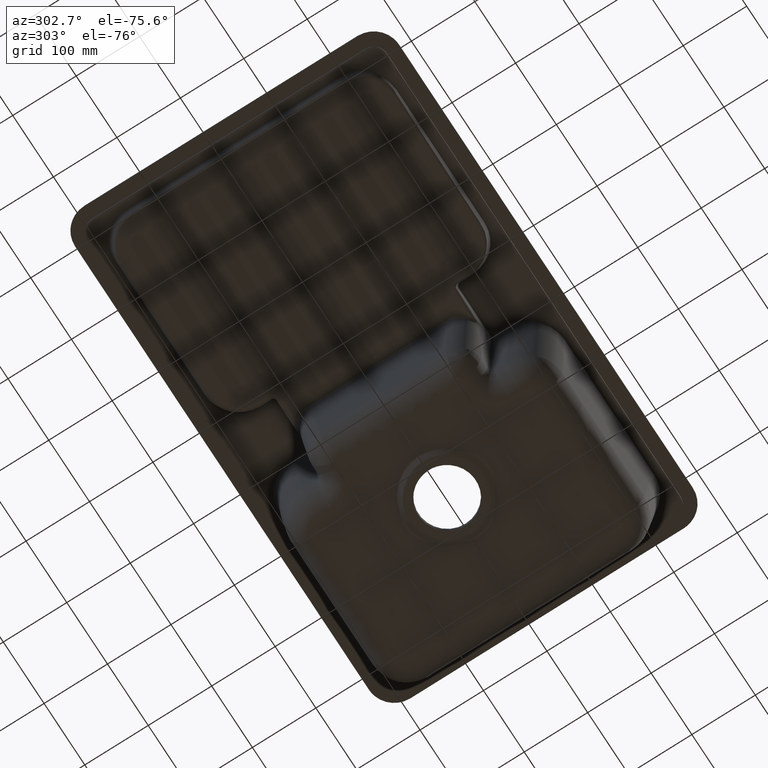
[diagram: clean part render]
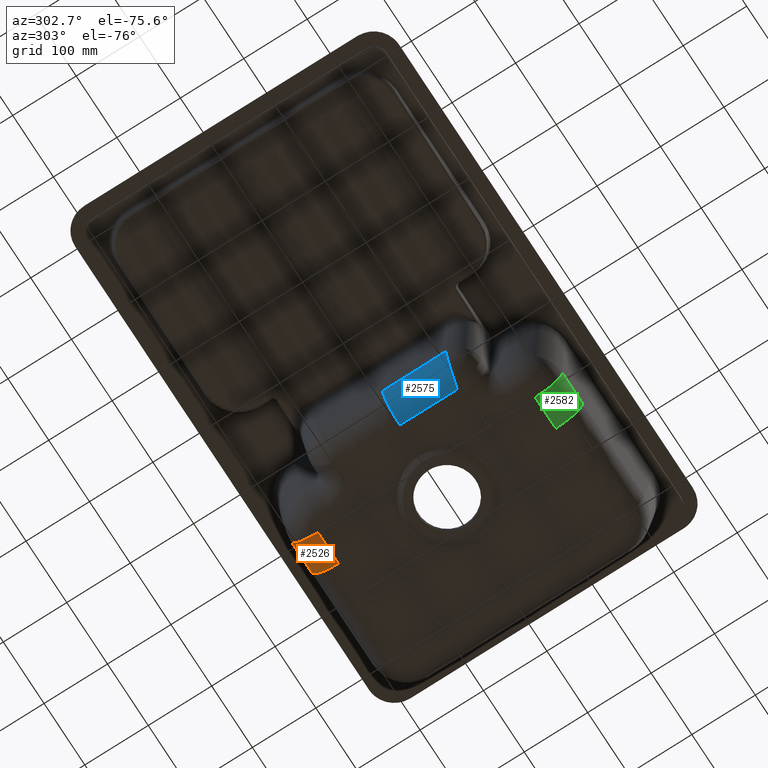
[diagram: same view with three faces highlighted in distinct colors, each labeled with its STEP entity id]
A machine part, auxiliary view with three faces highlighted in distinct colors.
Their STEP definitions:

[orange] entity #2526 — the highlighted face is a freeform B-spline surface patch.
#117=(
BOUNDED_CURVE()
B_SPLINE_CURVE(3,(#22427,#22428,#22429,#22430),.UNSPECIFIED.,.F.,.F.)
B_SPLINE_CURVE_WITH_KNOTS((4,4),(0.,1.),.UNSPECIFIED.)
CURVE()
GEOMETRIC_REPRESENTATION_ITEM()
RATIONAL_B_SPLINE_CURVE((0.999999995466364,0.999999995466364,0.999999995455953,
0.999999995455953))
REPRESENTATION_ITEM('')
);
#630=(
BOUNDED_SURFACE()
B_SPLINE_SURFACE(3,2,((#22826,#22827,#22828),(#22829,#22830,#22831),(#22832,
#22833,#22834),(#22835,#22836,#22837)),.UNSPECIFIED.,.F.,.F.,.F.)
B_SPLINE_SURFACE_WITH_KNOTS((4,4),(3,3),(0.,1.),(0.,1.),.UNSPECIFIED.)
GEOMETRIC_REPRESENTATION_ITEM()
RATIONAL_B_SPLINE_SURFACE(((1.,0.745772614702133,1.),(1.,0.745772614702133,
1.),(1.,0.745188849005256,1.),(1.,0.745188849005256,1.)))
REPRESENTATION_ITEM('')
SURFACE()
);
#1093=CIRCLE('',#11816,44.5);
#1094=CIRCLE('',#11817,44.5);
#1813=B_SPLINE_CURVE_WITH_KNOTS('',3,(#22084,#22085,#22086,#22087),
 .UNSPECIFIED.,.F.,.F.,(4,4),(0.,1.),.UNSPECIFIED.);
#2526=ADVANCED_FACE('',(#3359),#630,.T.);
#3359=FACE_OUTER_BOUND('',#4124,.T.);
#4124=EDGE_LOOP('',(#5935,#5936,#5937,#5938));
#5935=ORIENTED_EDGE('',*,*,#9891,.F.);
#5936=ORIENTED_EDGE('',*,*,#9811,.T.);
#5937=ORIENTED_EDGE('',*,*,#9892,.T.);
#5938=ORIENTED_EDGE('',*,*,#9860,.T.);
#8541=VERTEX_POINT('',#22083);
#8542=VERTEX_POINT('',#22088);
#8570=VERTEX_POINT('',#22375);
#8576=VERTEX_POINT('',#22426);
#9811=EDGE_CURVE('',#8542,#8541,#1813,.T.);
#9860=EDGE_CURVE('',#8570,#8576,#117,.T.);
#9891=EDGE_CURVE('',#8542,#8576,#1093,.T.);
#9892=EDGE_CURVE('',#8541,#8570,#1094,.T.);
#11816=AXIS2_PLACEMENT_3D('',#22776,#13248,#13249);
#11817=AXIS2_PLACEMENT_3D('',#22825,#13250,#13251);
#13248=DIRECTION('',(-0.999925989373044,0.000848669358611806,0.0121365372598005));
#13249=DIRECTION('',(0.0121365416304106,0.,0.999926349466426));
#13250=DIRECTION('',(-1.,0.,0.));
#13251=DIRECTION('',(0.,0.,1.));
#22083=CARTESIAN_POINT('',(154.999999999999,-786.214469888993,-146.562615644602));
#22084=CARTESIAN_POINT('',(105.061292286884,-786.192833572853,-146.253201908468));
#22085=CARTESIAN_POINT('',(121.706912440664,-786.206961246231,-146.455237050424));
#22086=CARTESIAN_POINT('',(138.353121941844,-786.214469888993,-146.562615644602));
#22087=CARTESIAN_POINT('',(154.999999999999,-786.214469888993,-146.562615644602));
#22088=CARTESIAN_POINT('',(105.061292286884,-786.192833572853,-146.253201908468));
#22375=CARTESIAN_POINT('',(154.999999999999,-828.703023088049,-187.917741940722));
#22426=CARTESIAN_POINT('',(104.523219798323,-828.75903905101,-187.608328204588));
#22427=CARTESIAN_POINT('',(154.999999999999,-828.703022559857,-187.917741918113));
#22428=CARTESIAN_POINT('',(138.165872843444,-828.703022562614,-187.917741918231));
#22429=CARTESIAN_POINT('',(121.333561883625,-828.724537933289,-187.810360322956));
#22430=CARTESIAN_POINT('',(104.523219799035,-828.759038522262,-187.608328182887));
#22776=CARTESIAN_POINT('',(105.061292286884,-830.584433809415,-143.149038826854));
#22825=CARTESIAN_POINT('',(154.999999999999,-830.606070125555,-143.458452562988));
#22826=CARTESIAN_POINT('',(154.999999999999,-828.703023088049,-187.917741940722));
#22827=CARTESIAN_POINT('',(154.999999999999,-788.98742667434,-186.217745176137));
#22828=CARTESIAN_POINT('',(154.999999999999,-786.214469888992,-146.562615644602));
#22829=CARTESIAN_POINT('',(138.165872843192,-828.703023090806,-187.91774194084));
#22830=CARTESIAN_POINT('',(138.184806905176,-788.987426673416,-186.217745177061));
#22831=CARTESIAN_POINT('',(138.35310427635,-786.214469888985,-146.562615644501));
#22832=CARTESIAN_POINT('',(121.333561883124,-828.72453846143,-187.810360345215));
#22833=CARTESIAN_POINT('',(121.371223110733,-788.981664911205,-186.13534813194));
#22834=CARTESIAN_POINT('',(121.706929962395,-786.206961261108,-146.455237263182));
#22835=CARTESIAN_POINT('',(104.523219798323,-828.75903905101,-187.608328204588));
#22836=CARTESIAN_POINT('',(104.576809784503,-788.970476835692,-185.975351190532));
#22837=CARTESIAN_POINT('',(105.061292286884,-786.192833572853,-146.253201908468));

[blue] entity #2575 — the highlighted face is a freeform B-spline surface patch.
#645=(
BOUNDED_SURFACE()
B_SPLINE_SURFACE(3,2,((#24105,#24106,#24107),(#24108,#24109,#24110),(#24111,
#24112,#24113),(#24114,#24115,#24116)),.UNSPECIFIED.,.F.,.F.,.F.)
B_SPLINE_SURFACE_WITH_KNOTS((4,4),(3,3),(0.,1.),(0.,1.),.UNSPECIFIED.)
GEOMETRIC_REPRESENTATION_ITEM()
RATIONAL_B_SPLINE_SURFACE(((1.,0.745772614702134,1.),(1.,0.745772614702134,
1.),(1.,0.742208724447458,1.),(1.,0.742208724447458,1.)))
REPRESENTATION_ITEM('')
SURFACE()
);
#1088=CIRCLE('',#11811,44.5);
#1881=B_SPLINE_CURVE_WITH_KNOTS('',3,(#23853,#23854,#23855,#23856,#23857,
#23858,#23859,#23860,#23861,#23862,#23863,#23864,#23865,#23866,#23867,#23868,
#23869,#23870),.UNSPECIFIED.,.F.,.F.,(4,2,2,2,2,2,2,2,4),(0.,0.249999999999984,
0.374999999999976,0.437499999999976,0.468749999999972,0.499999999999968,
0.624999999999974,0.74999999999998,1.),.UNSPECIFIED.);
#1895=B_SPLINE_CURVE_WITH_KNOTS('',3,(#24037,#24038,#24039,#24040,#24041,
#24042,#24043,#24044,#24045,#24046,#24047,#24048),.UNSPECIFIED.,.F.,.F.,
(4,2,2,2,2,4),(0.,0.230562478008955,0.480673452288861,0.73074479620605,
0.74993361334484,1.),.UNSPECIFIED.);
#1896=B_SPLINE_CURVE_WITH_KNOTS('',3,(#24050,#24051,#24052,#24053,#24054,
#24055,#24056,#24057,#24058,#24059,#24060,#24061,#24062,#24063,#24064,#24065,
#24066,#24067,#24068,#24069,#24070,#24071,#24072,#24073,#24074,#24075,#24076,
#24077,#24078,#24079,#24080,#24081,#24082,#24083,#24084,#24085,#24086,#24087,
#24088,#24089,#24090,#24091,#24092,#24093,#24094,#24095,#24096,#24097,#24098,
#24099,#24100,#24101,#24102,#24103,#24104),.UNSPECIFIED.,.F.,.F.,(4,2,2,
2,2,2,2,2,2,2,2,2,2,2,2,2,2,2,2,1,2,2,2,2,2,2,2,4),(0.,0.00195312499999872,
0.00390624999999745,0.0078124999999976,0.0156249999999977,0.0312499999999978,
0.046874999999998,0.0546874999999991,0.0625000000000002,0.09375,0.109375,
0.125,0.187500000000006,0.218750000000009,0.23437500000001,0.250000000000012,
0.375000000000018,0.437500000000021,0.468750000000021,0.484375000000022,
0.492187500000022,0.500000000000023,0.625000000000018,0.687500000000017,
0.718750000000016,0.734375000000015,0.750000000000015,1.),.UNSPECIFIED.);
#2575=ADVANCED_FACE('',(#3408),#645,.T.);
#3408=FACE_OUTER_BOUND('',#4173,.T.);
#4173=EDGE_LOOP('',(#6171,#6172,#6173,#6174));
#6171=ORIENTED_EDGE('',*,*,#9883,.T.);
#6172=ORIENTED_EDGE('',*,*,#9985,.F.);
#6173=ORIENTED_EDGE('',*,*,#10004,.T.);
#6174=ORIENTED_EDGE('',*,*,#10003,.F.);
#8571=VERTEX_POINT('',#22377);
#8592=VERTEX_POINT('',#22581);
#8642=VERTEX_POINT('',#23852);
#8652=VERTEX_POINT('',#24036);
#9883=EDGE_CURVE('',#8592,#8571,#1088,.T.);
#9985=EDGE_CURVE('',#8642,#8571,#1881,.T.);
#10003=EDGE_CURVE('',#8592,#8652,#1895,.T.);
#10004=EDGE_CURVE('',#8642,#8652,#1896,.T.);
#11811=AXIS2_PLACEMENT_3D('',#22584,#13238,#13239);
#13238=DIRECTION('',(8.02714802886122E-14,-1.,-3.43596141318321E-15));
#13239=DIRECTION('',(-1.,-7.98362624449551E-14,0.));
#22377=CARTESIAN_POINT('',(38.8681414185172,-1000.,-190.279044077616));
#22581=CARTESIAN_POINT('',(-3.62041178053926,-1000.,-148.923917781496));
#22584=CARTESIAN_POINT('',(40.7711884560229,-1000.,-145.819754699883));
#23852=CARTESIAN_POINT('',(39.179253954876,-1090.49281063046,-188.958572335223));
#23853=CARTESIAN_POINT('',(39.179253954876,-1090.49281063046,-188.958572335223));
#23854=CARTESIAN_POINT('',(39.1436342305972,-1082.52636394488,-189.167315510143));
#23855=CARTESIAN_POINT('',(39.1080964552201,-1074.82718901924,-189.351739003462));
#23856=CARTESIAN_POINT('',(39.0559570764958,-1063.56484369555,-189.591894721038));
#23857=CARTESIAN_POINT('',(39.0386192244417,-1059.85787530824,-189.665866706496));
#23858=CARTESIAN_POINT('',(39.0131177113046,-1054.34816049686,-189.767704804083));
#23859=CARTESIAN_POINT('',(39.0047128194758,-1052.52000386916,-189.800130856512));
#23860=CARTESIAN_POINT('',(38.9924693253106,-1049.78752017476,-189.846489965005));
#23861=CARTESIAN_POINT('',(38.9884502875608,-1048.87831488471,-189.861563006145));
#23862=CARTESIAN_POINT('',(38.9805938325099,-1047.0626400037,-189.890949098374));
#23863=CARTESIAN_POINT('',(38.9769658535886,-1046.20730036607,-189.904475289683));
#23864=CARTESIAN_POINT('',(38.9573691864939,-1041.42481703925,-189.978074868906));
#23865=CARTESIAN_POINT('',(38.9440901361133,-1037.64273889783,-190.029813551597));
#23866=CARTESIAN_POINT('',(38.9184576715459,-1030.11828609616,-190.119008955605));
#23867=CARTESIAN_POINT('',(38.906143004988,-1026.43010494406,-190.156027197528));
#23868=CARTESIAN_POINT('',(38.8782036687903,-1015.01822604778,-190.248289857594));
#23869=CARTESIAN_POINT('',(38.8681414185172,-1007.56619373872,-190.279044077616));
#23870=CARTESIAN_POINT('',(38.8681414185172,-1000.,-190.279044077616));
#24036=CARTESIAN_POINT('',(-3.73280674426469,-1099.81556765206,-147.31659491632));
#24037=CARTESIAN_POINT('',(-3.62041178053926,-1000.,-148.923917781496));
#24038=CARTESIAN_POINT('',(-3.62041178053926,-1007.67246144112,-148.923917781496));
#24039=CARTESIAN_POINT('',(-3.6227548578135,-1015.34498798397,-148.890410215384));
#24040=CARTESIAN_POINT('',(-3.63223895826833,-1031.33985128072,-148.754781260034));
#24041=CARTESIAN_POINT('',(-3.63976172192891,-1039.6622711818,-148.647200727596));
#24042=CARTESIAN_POINT('',(-3.65910299393537,-1056.30461956092,-148.370607651651));
#24043=CARTESIAN_POINT('',(-3.67090796386261,-1064.62466476216,-148.201788716551));
#24044=CARTESIAN_POINT('',(-3.6853691847443,-1073.58249790001,-147.994983623056));
#24045=CARTESIAN_POINT('',(-3.68640935587183,-1074.22087726143,-147.980108482911));
#24046=CARTESIAN_POINT('',(-3.70113634132479,-1083.17847065828,-147.76950277898));
#24047=CARTESIAN_POINT('',(-3.71639662364943,-1091.49716866507,-147.551270574471));
#24048=CARTESIAN_POINT('',(-3.73280723733675,-1099.815370087,-147.316587865061));
#24050=CARTESIAN_POINT('',(39.1785372500895,-1090.49280221738,-188.958310274702));
#24051=CARTESIAN_POINT('',(39.1783315656138,-1090.49288738836,-188.958301092958));
#24052=CARTESIAN_POINT('',(39.1574034499969,-1090.49786471624,-188.957478447999));
#24053=CARTESIAN_POINT('',(39.074040069047,-1090.51759889025,-188.95402807164));
#24054=CARTESIAN_POINT('',(38.9696955239371,-1090.54223885279,-188.949489881489));
#24055=CARTESIAN_POINT('',(38.8455813220031,-1090.57150780655,-188.943831497975));
#24056=CARTESIAN_POINT('',(38.7599756792485,-1090.59169136915,-188.939686394918));
#24057=CARTESIAN_POINT('',(38.5119399916892,-1090.65015696933,-188.926974802775));
#24058=CARTESIAN_POINT('',(38.3390987897003,-1090.69088002605,-188.917130725485));
#24059=CARTESIAN_POINT('',(37.8468656676767,-1090.80679880326,-188.886324439722));
#24060=CARTESIAN_POINT('',(37.4902661579791,-1090.89069763487,-188.859870006687));
#24061=CARTESIAN_POINT('',(36.8495409869673,-1091.04130092986,-188.805193039907));
#24062=CARTESIAN_POINT('',(36.5218684771165,-1091.11825437663,-188.773740513812));
#24063=CARTESIAN_POINT('',(36.0193962924103,-1091.23614092998,-188.719622933937));
#24064=CARTESIAN_POINT('',(35.8500787457337,-1091.27584583057,-188.700426794575));
#24065=CARTESIAN_POINT('',(35.5077956643547,-1091.3560706718,-188.659586921248));
#24066=CARTESIAN_POINT('',(35.3048648978944,-1091.40360691684,-188.634010972842));
#24067=CARTESIAN_POINT('',(34.5807673432827,-1091.57315309616,-188.53899061867));
#24068=CARTESIAN_POINT('',(33.9580992628306,-1091.71876368864,-188.445791816285));
#24069=CARTESIAN_POINT('',(32.9588560113232,-1091.95189427328,-188.271351710661));
#24070=CARTESIAN_POINT('',(32.6149101995646,-1092.03205645917,-188.207415594933));
#24071=CARTESIAN_POINT('',(31.9053952278308,-1092.19723827012,-188.066296550719));
#24072=CARTESIAN_POINT('',(31.4863578658469,-1092.29468055842,-187.977077364887));
#24073=CARTESIAN_POINT('',(29.8723371282045,-1092.6696832141,-187.613741406204));
#24074=CARTESIAN_POINT('',(28.5771191681482,-1092.96813675745,-187.261844570302));
#24075=CARTESIAN_POINT('',(26.6409877817628,-1093.41337679415,-186.638923873738));
#24076=CARTESIAN_POINT('',(25.9967394503571,-1093.56138402239,-186.415459671354));
#24077=CARTESIAN_POINT('',(25.0337438450986,-1093.78277685478,-186.056335877376));
#24078=CARTESIAN_POINT('',(24.7133086895126,-1093.85647150707,-185.932641589014));
#24079=CARTESIAN_POINT('',(24.0738515912832,-1094.00365395704,-185.677267589022));
#24080=CARTESIAN_POINT('',(23.7824054071155,-1094.07078158094,-185.557346526087));
#24081=CARTESIAN_POINT('',(20.6706886071385,-1094.78847992347,-184.230469118808));
#24082=CARTESIAN_POINT('',(18.1395787614635,-1095.35663773032,-182.819802877153));
#24083=CARTESIAN_POINT('',(14.7592553665405,-1096.10905805134,-180.53273006564));
#24084=CARTESIAN_POINT('',(13.7009220112207,-1096.34323470535,-179.741985063328));
#24085=CARTESIAN_POINT('',(12.2164228754004,-1096.67015904968,-178.534466055172));
#24086=CARTESIAN_POINT('',(11.738708542583,-1096.77507670946,-178.128377165373));
#24087=CARTESIAN_POINT('',(11.047467334145,-1096.92643868873,-177.516337696665));
#24088=CARTESIAN_POINT('',(10.7081755887746,-1097.000615995,-177.209589246843));
#24089=CARTESIAN_POINT('',(10.3782805123781,-1097.07255057245,-176.902189364039));
#24090=CARTESIAN_POINT('',(10.1604258797216,-1097.12000995378,-176.697158862615));
#24091=CARTESIAN_POINT('',(10.0767216491231,-1097.13823272803,-176.617814027706));
#24092=CARTESIAN_POINT('',(7.84897949820506,-1097.62259315733,-174.479080678865));
#24093=CARTESIAN_POINT('',(6.00108532297523,-1098.01429924698,-172.311504390648));
#24094=CARTESIAN_POINT('',(3.62251256860555,-1098.50951858126,-168.958406413787));
#24095=CARTESIAN_POINT('',(2.89461374680572,-1098.65920135671,-167.823710081666));
#24096=CARTESIAN_POINT('',(1.89803856998949,-1098.8610942094,-166.111130060697));
#24097=CARTESIAN_POINT('',(1.58169664856364,-1098.92461954549,-165.538499949535));
#24098=CARTESIAN_POINT('',(1.1304514021591,-1099.01430169648,-164.678622523629));
#24099=CARTESIAN_POINT('',(0.983912753074245,-1099.04326140537,-164.39184021399));
#24100=CARTESIAN_POINT('',(0.698486823578762,-1099.09932049112,-163.818235656593));
#24101=CARTESIAN_POINT('',(0.574930239697611,-1099.12345019656,-163.563944218405));
#24102=CARTESIAN_POINT('',(-1.98269014234697,-1099.61887972363,-158.136840200659));
#24103=CARTESIAN_POINT('',(-3.36115438930831,-1099.8336789718,-152.631457128745));
#24104=CARTESIAN_POINT('',(-3.7328066969111,-1099.81537011363,-147.316595593497));
#24105=CARTESIAN_POINT('',(38.8681414185172,-1000.,-190.279044077616));
#24106=CARTESIAN_POINT('',(-0.847454995192037,-1000.,-188.579047313032));
#24107=CARTESIAN_POINT('',(-3.62041178053926,-1000.,-148.923917781496));
#24108=CARTESIAN_POINT('',(38.8681414187691,-1034.05743079474,-190.279044077627));
#24109=CARTESIAN_POINT('',(-0.847454994029897,-1033.99809063967,-188.579047311637));
#24110=CARTESIAN_POINT('',(-3.62041178047291,-1033.47795265616,-148.923917782445));
#24111=CARTESIAN_POINT('',(39.0868675134921,-1067.98757910787,-189.601614461683));
#24112=CARTESIAN_POINT('',(-0.878754285254448,-1067.88622807349,-188.131446571875));
#24113=CARTESIAN_POINT('',(-3.66774896053454,-1066.95074380091,-148.246964568848));
#24114=CARTESIAN_POINT('',(39.2276824032538,-1101.66986694281,-188.654792905038));
#24115=CARTESIAN_POINT('',(-0.932250179266451,-1101.55389752202,-187.366419685411));
#24116=CARTESIAN_POINT('',(-3.7339904868329,-1100.41412182107,-147.299666608918));

[green] entity #2582 — the highlighted face is a freeform B-spline surface patch.
#652=(
BOUNDED_SURFACE()
B_SPLINE_SURFACE(3,2,((#24351,#24352,#24353),(#24354,#24355,#24356),(#24357,
#24358,#24359),(#24360,#24361,#24362)),.UNSPECIFIED.,.F.,.F.,.F.)
B_SPLINE_SURFACE_WITH_KNOTS((4,4),(3,3),(0.,1.),(0.,1.),.UNSPECIFIED.)
GEOMETRIC_REPRESENTATION_ITEM()
RATIONAL_B_SPLINE_SURFACE(((1.,0.745772614702133,1.),(1.,0.745772614702133,
1.),(1.,0.745188849005255,1.),(1.,0.745188849005255,1.)))
REPRESENTATION_ITEM('')
SURFACE()
);
#1127=CIRCLE('',#11884,44.5);
#1128=CIRCLE('',#11885,44.5);
#1852=B_SPLINE_CURVE_WITH_KNOTS('',3,(#23493,#23494,#23495,#23496),
 .UNSPECIFIED.,.F.,.F.,(4,4),(0.,1.),.UNSPECIFIED.);
#1876=B_SPLINE_CURVE_WITH_KNOTS('',3,(#23806,#23807,#23808,#23809,#23810,
#23811),.UNSPECIFIED.,.F.,.F.,(4,2,4),(0.,0.5,1.),.UNSPECIFIED.);
#2582=ADVANCED_FACE('',(#3415),#652,.T.);
#3415=FACE_OUTER_BOUND('',#4180,.T.);
#4180=EDGE_LOOP('',(#6199,#6200,#6201,#6202));
#6199=ORIENTED_EDGE('',*,*,#10011,.T.);
#6200=ORIENTED_EDGE('',*,*,#9980,.F.);
#6201=ORIENTED_EDGE('',*,*,#10012,.F.);
#6202=ORIENTED_EDGE('',*,*,#9939,.F.);
#8611=VERTEX_POINT('',#23492);
#8612=VERTEX_POINT('',#23497);
#8637=VERTEX_POINT('',#23805);
#8638=VERTEX_POINT('',#23812);
#9939=EDGE_CURVE('',#8611,#8612,#1852,.T.);
#9980=EDGE_CURVE('',#8637,#8638,#1876,.T.);
#10011=EDGE_CURVE('',#8611,#8638,#1127,.T.);
#10012=EDGE_CURVE('',#8612,#8637,#1128,.T.);
#11884=AXIS2_PLACEMENT_3D('',#24301,#13411,#13412);
#11885=AXIS2_PLACEMENT_3D('',#24350,#13413,#13414);
#13411=DIRECTION('',(0.999925989373044,0.000848669358611806,-0.0121365372598005));
#13412=DIRECTION('',(0.0121365416304106,0.,0.999926349466426));
#13413=DIRECTION('',(1.,0.,0.));
#13414=DIRECTION('',(0.,0.,1.));
#23492=CARTESIAN_POINT('',(105.061292286884,-1213.80716642715,-146.253201908468));
#23493=CARTESIAN_POINT('',(105.061292286884,-1213.80716642715,-146.253201908468));
#23494=CARTESIAN_POINT('',(121.706912440664,-1213.79303875377,-146.455237050424));
#23495=CARTESIAN_POINT('',(138.353121941844,-1213.78553011101,-146.562615644602));
#23496=CARTESIAN_POINT('',(154.999999999999,-1213.78553011101,-146.562615644602));
#23497=CARTESIAN_POINT('',(154.999999999999,-1213.78553011101,-146.562615644602));
#23805=CARTESIAN_POINT('',(154.999999999999,-1171.29697691195,-187.917741940722));
#23806=CARTESIAN_POINT('',(154.999999999999,-1171.29697691195,-187.917741940722));
#23807=CARTESIAN_POINT('',(146.582227431143,-1171.29697691195,-187.917741940722));
#23808=CARTESIAN_POINT('',(138.150309558519,-1171.29159905996,-187.891157123284));
#23809=CARTESIAN_POINT('',(121.371947440939,-1171.27226685433,-187.787279680384));
#23810=CARTESIAN_POINT('',(113.009267875405,-1171.25837723169,-187.710316281302));
#23811=CARTESIAN_POINT('',(104.523219798323,-1171.24096094899,-187.608328204588));
#23812=CARTESIAN_POINT('',(104.523219798323,-1171.24096094899,-187.608328204588));
#24301=CARTESIAN_POINT('',(105.061292286884,-1169.41556619058,-143.149038826854));
#24350=CARTESIAN_POINT('',(154.999999999999,-1169.39392987445,-143.458452562988));
#24351=CARTESIAN_POINT('',(154.999999999999,-1213.78553011101,-146.562615644602));
#24352=CARTESIAN_POINT('',(154.999999999999,-1211.01257332566,-186.217745176137));
#24353=CARTESIAN_POINT('',(154.999999999999,-1171.29697691195,-187.917741940722));
#24354=CARTESIAN_POINT('',(138.353104276345,-1213.78553011103,-146.562615644243));
#24355=CARTESIAN_POINT('',(138.184806905183,-1211.01257332751,-186.217745175213));
#24356=CARTESIAN_POINT('',(138.165872843207,-1171.29697691565,-187.917741940563));
#24357=CARTESIAN_POINT('',(121.706929962402,-1213.7930387389,-146.455237263118));
#24358=CARTESIAN_POINT('',(121.371223110724,-1211.01833508879,-186.135348133788));
#24359=CARTESIAN_POINT('',(121.333561883104,-1171.27546153949,-187.810360345176));
#24360=CARTESIAN_POINT('',(105.061292286884,-1213.80716642715,-146.253201908468));
#24361=CARTESIAN_POINT('',(104.576809784503,-1211.02952316431,-185.975351190532));
#24362=CARTESIAN_POINT('',(104.523219798323,-1171.24096094899,-187.608328204588));